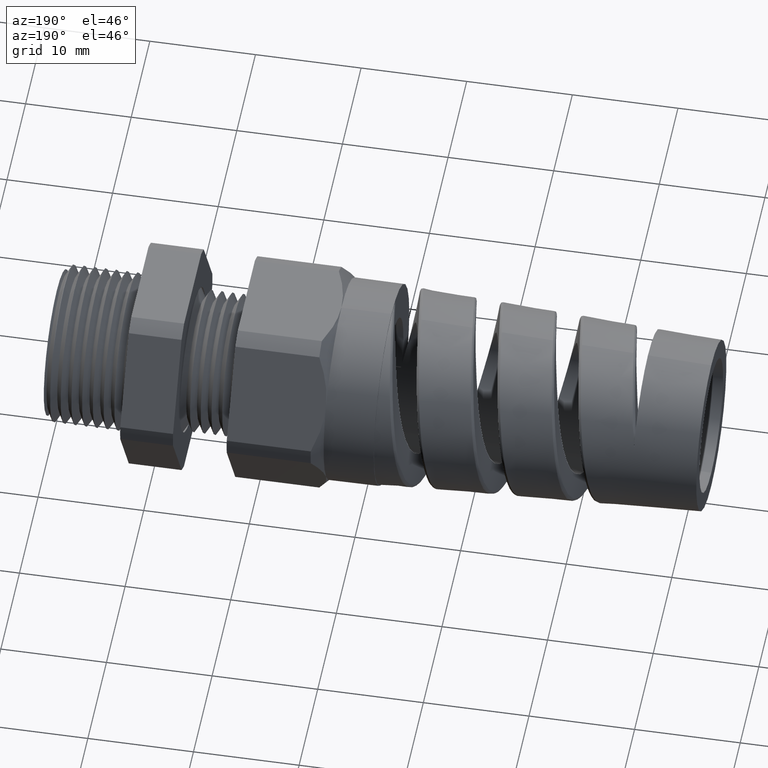
[diagram: clean part render]
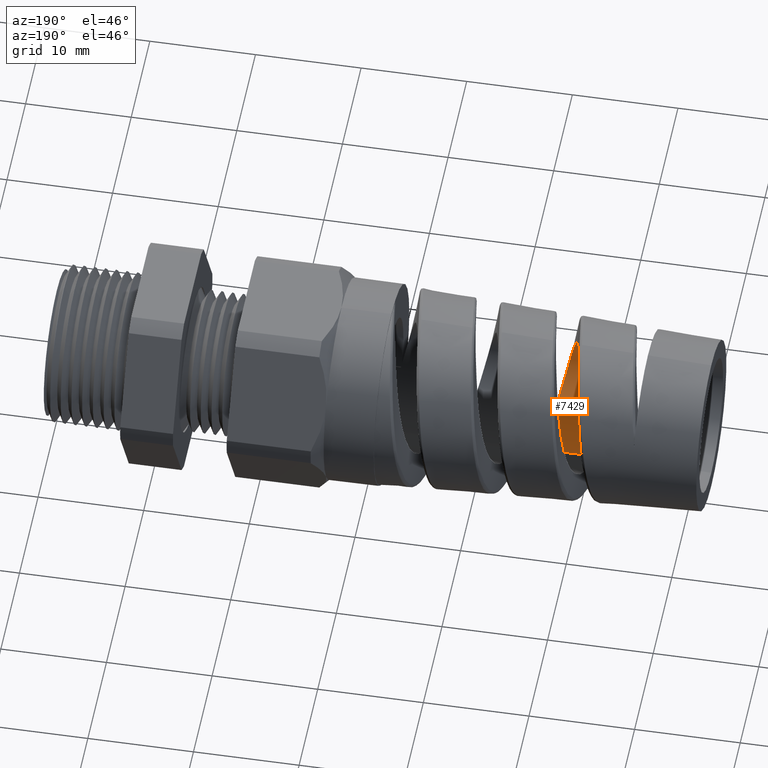
[diagram: same view with one face highlighted and labeled with its STEP entity id]
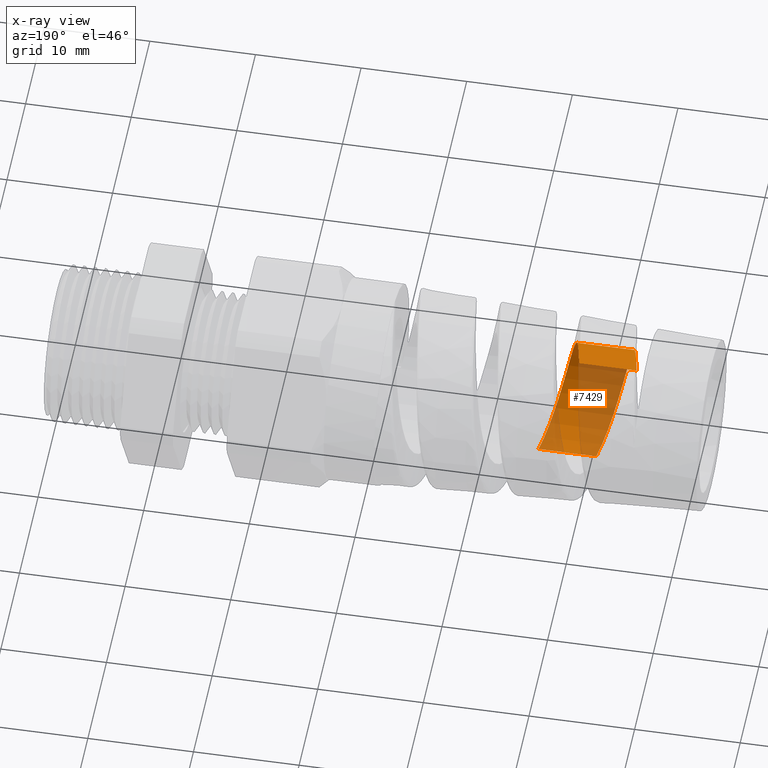
[diagram: x-ray of the same camera — body ghosted, the highlighted face saturated]
A machine part, auxiliary view. The second image highlights one B-rep face of the part: STEP entity #7429.
The next image is the same camera in x-ray: the body ghosted, the highlighted face saturated — about 56% of this face is hidden behind the body in this view.
In plain terms, the highlighted cylindrical surface (partial cylindrical patch) has radius 6.096 mm, axis along (1, 0, 0).
Its self-contained STEP definition (entity closure, byte-faithful):
#2983 = CARTESIAN_POINT ( 'NONE',  ( -1.796218581644420700, -5.091759151503627400E-013, -0.2399999999999999600 ) ) ;
#3215 = CARTESIAN_POINT ( 'NONE',  ( -1.946289323724517400, 7.574688839307685300E-014, 0.2399999999999999100 ) ) ;
#3377 = CARTESIAN_POINT ( 'NONE',  ( -2.011205361013721500, 3.223986141210390100E-013, -0.2400000000000000700 ) ) ;
#3434 = DIRECTION ( 'NONE',  ( 1.000000000000000000, 0.0000000000000000000, 0.0000000000000000000 ) ) ;
#3435 = VECTOR ( 'NONE', #3434, 39.37007874015748100 ) ;
#3436 = CARTESIAN_POINT ( 'NONE',  ( 0.09602717987635048200, 0.0000000000000000000, -0.2399999999999999600 ) ) ;
#3437 = LINE ( 'NONE', #3436, #3435 ) ;
#3438 = CARTESIAN_POINT ( 'NONE',  ( -1.796218581644420700, -5.091759151503627400E-013, -0.2399999999999999600 ) ) ;
#3463 = CARTESIAN_POINT ( 'NONE',  ( -1.799345076853985100, -0.01571479106632575300, -0.2399999999999668500 ) ) ;
#3464 = CARTESIAN_POINT ( 'NONE',  ( -1.802441852556633700, -0.03127694446794344900, -0.2384705174935239400 ) ) ;
#3465 = CARTESIAN_POINT ( 'NONE',  ( -1.808691589222652100, -0.06207396303905810700, -0.2323644940207207600 ) ) ;
#3466 = CARTESIAN_POINT ( 'NONE',  ( -1.811857481762063600, -0.07736311769747616900, -0.2277280513444978100 ) ) ;
#3467 = CARTESIAN_POINT ( 'NONE',  ( -1.818092459222667000, -0.1062929125134097600, -0.2157473849168336000 ) ) ;
#3468 = CARTESIAN_POINT ( 'NONE',  ( -1.821192243707277800, -0.1201034456313335200, -0.2083850614090281500 ) ) ;
#3469 = CARTESIAN_POINT ( 'NONE',  ( -1.825903156098205700, -0.1397976237568336600, -0.1952406649744962400 ) ) ;
#3470 = CARTESIAN_POINT ( 'NONE',  ( -1.827482766869769500, -0.1461830481258230300, -0.1905052886881926100 ) ) ;
#3471 = CARTESIAN_POINT ( 'NONE',  ( -1.830609670608373000, -0.1583315642719665700, -0.1805349393683129700 ) ) ;
#3472 = CARTESIAN_POINT ( 'NONE',  ( -1.832165622265226500, -0.1641316044955956300, -0.1752767065292338800 ) ) ;
#3473 = CARTESIAN_POINT ( 'NONE',  ( -1.836833034425648700, -0.1807186285898966500, -0.1586984784574887500 ) ) ;
#3474 = CARTESIAN_POINT ( 'NONE',  ( -1.839958943427009800, -0.1907460940445481800, -0.1465127469310545400 ) ) ;
#3475 = CARTESIAN_POINT ( 'NONE',  ( -1.846256688909388100, -0.2083206017564918900, -0.1202189015519105500 ) ) ;
#3476 = CARTESIAN_POINT ( 'NONE',  ( -1.849359788129029300, -0.2156922610018641400, -0.1064034323094277700 ) ) ;
#3477 = CARTESIAN_POINT ( 'NONE',  ( -1.854030583799945100, -0.2246846358825431700, -0.08472322505759495600 ) ) ;
#3478 = CARTESIAN_POINT ( 'NONE',  ( -1.855590234359778800, -0.2273355227818816000, -0.07733588511904468400 ) ) ;
#3479 = CARTESIAN_POINT ( 'NONE',  ( -1.858730363671128500, -0.2319248898760428400, -0.06223443180139816300 ) ) ;
#3480 = CARTESIAN_POINT ( 'NONE',  ( -1.860310243079125400, -0.2338570251685403200, -0.05452201581056152800 ) ) ;
#3481 = CARTESIAN_POINT ( 'NONE',  ( -1.865001380372663700, -0.2384557436013791700, -0.03139891810905406900 ) ) ;
#3482 = CARTESIAN_POINT ( 'NONE',  ( -1.868099486723601400, -0.2399907131798922600, -0.01583740965471708300 ) ) ;
#3483 = CARTESIAN_POINT ( 'NONE',  ( -1.874347620677560000, -0.2400092035551917900, 0.01555468308796917500 ) ) ;
#3484 = CARTESIAN_POINT ( 'NONE',  ( -1.877515720137594900, -0.2384442897084669800, 0.03145609773872871200 ) ) ;
#3485 = CARTESIAN_POINT ( 'NONE',  ( -1.883749534328019900, -0.2323360539032754700, 0.06217011690658180700 ) ) ;
#3486 = CARTESIAN_POINT ( 'NONE',  ( -1.886847928331726500, -0.2278087992488895300, 0.07715057530661720300 ) ) ;
#3487 = CARTESIAN_POINT ( 'NONE',  ( -1.891557619892518400, -0.2187605998226974100, 0.09902557768856677700 ) ) ;
#3488 = CARTESIAN_POINT ( 'NONE',  ( -1.893137828412657900, -0.2153609920142126900, 0.1062139886190101600 ) ) ;
#3489 = CARTESIAN_POINT ( 'NONE',  ( -1.896265849506708800, -0.2079506694334761800, 0.1200761730813992300 ) ) ;
#3490 = CARTESIAN_POINT ( 'NONE',  ( -1.897822355982464500, -0.2039244074275359800, 0.1267909465779982500 ) ) ;
#3491 = CARTESIAN_POINT ( 'NONE',  ( -1.902490575881320900, -0.1908998695600263900, 0.1462931034506788600 ) ) ;
#3492 = CARTESIAN_POINT ( 'NONE',  ( -1.905615699538617100, -0.1809100721717177600, 0.1584983529673436000 ) ) ;
#3493 = CARTESIAN_POINT ( 'NONE',  ( -1.911914764071887200, -0.1585440771256889100, 0.1808700022527241200 ) ) ;
#3494 = CARTESIAN_POINT ( 'NONE',  ( -1.915016562994604500, -0.1464303402485643300, 0.1907956213687848600 ) ) ;
#3495 = CARTESIAN_POINT ( 'NONE',  ( -1.919686098046592400, -0.1269216608220101500, 0.2038433109863684300 ) ) ;
#3496 = CARTESIAN_POINT ( 'NONE',  ( -1.921245395357905000, -0.1201942045805304600, 0.2078836312868669600 ) ) ;
#3497 = CARTESIAN_POINT ( 'NONE',  ( -1.924384990412221700, -0.1062812172698719400, 0.2153289433109139000 ) ) ;
#3498 = CARTESIAN_POINT ( 'NONE',  ( -1.925965573170781900, -0.09909213184452617100, 0.2187293477022765900 ) ) ;
#3499 = CARTESIAN_POINT ( 'NONE',  ( -1.930658534755901500, -0.07730675305905758400, 0.2277515718727131700 ) ) ;
#3500 = CARTESIAN_POINT ( 'NONE',  ( -1.933755938084959600, -0.06234309850888848000, 0.2322921115630209000 ) ) ;
#3501 = CARTESIAN_POINT ( 'NONE',  ( -1.940006017648212300, -0.03156253962025693000, 0.2384325756242540500 ) ) ;
#3502 = CARTESIAN_POINT ( 'NONE',  ( -1.943173091881696300, -0.01565935558690694600, 0.2400000000000049600 ) ) ;
#3503 = CARTESIAN_POINT ( 'NONE',  ( -1.946289323724517400, 7.574688839307685300E-014, 0.2399999999999999100 ) ) ;
#3506 = B_SPLINE_CURVE_WITH_KNOTS ( 'NONE', 3,
 ( #3503, #3502, #3501, #3500, #3499, #3498, #3497, #3496, #3495, #3494, #3493, #3492, #3491, #3490, #3489, #3488, #3487, #3486, #3485, #3484, #3483, #3482, #3481, #3480, #3479, #3478, #3477, #3476, #3475, #3474, #3473, #3472, #3471, #3470, #3469, #3468, #3467, #3466, #3465, #3464, #3463, #2983 ),
 .UNSPECIFIED., .F., .F.,
 ( 4, 2, 2, 2, 2, 2, 2, 2, 2, 2, 2, 2, 2, 2, 2, 2, 2, 2, 2, 2, 4 ),
 ( 0.03334762603918307900, 0.03456230039547690500, 0.03577697475177073900, 0.03638431192991765200, 0.03699164910806457300, 0.03820632346435840600, 0.03942099782065224000, 0.04002833499879916000, 0.04063567217694607400, 0.04185034653323990700, 0.04306502088953374800, 0.04427969524582757400, 0.04488703242397450200, 0.04549436960212141500, 0.04670904395841525600, 0.04792371831470908200, 0.04853105549285600300, 0.04913839267100292300, 0.05035306702729675600, 0.05156774138359059000, 0.05278241573988443100 ),
 .UNSPECIFIED. ) ;
#3508 = CARTESIAN_POINT ( 'NONE',  ( -2.092405020737196700, -0.2384634198785983200, 0.03136493497926864200 ) ) ;
#3509 = CARTESIAN_POINT ( 'NONE',  ( -2.089307972268295000, -0.2399913941444952700, 0.01579507239538019100 ) ) ;
#3510 = CARTESIAN_POINT ( 'NONE',  ( -2.083079738835440500, -0.2400085340142470700, -0.01553245556007741200 ) ) ;
#3511 = CARTESIAN_POINT ( 'NONE',  ( -2.079917968189332700, -0.2384481683514546900, -0.03144089873592425400 ) ) ;
#3512 = CARTESIAN_POINT ( 'NONE',  ( -2.073680664825668300, -0.2323271617848293700, -0.06221052162208574900 ) ) ;
#3513 = CARTESIAN_POINT ( 'NONE',  ( -2.070584899724715800, -0.2277961048291501600, -0.07717714240991888100 ) ) ;
#3514 = CARTESIAN_POINT ( 'NONE',  ( -2.065893483057911900, -0.2187807220746365000, -0.09897898675968586100 ) ) ;
#3515 = CARTESIAN_POINT ( 'NONE',  ( -2.064312222314190800, -0.2153816356182301800, -0.1061739355824688200 ) ) ;
#3516 = CARTESIAN_POINT ( 'NONE',  ( -2.061175497792306900, -0.2079494293103395000, -0.1200799250839142500 ) ) ;
#3517 = CARTESIAN_POINT ( 'NONE',  ( -2.059617180703407600, -0.2039150670987103200, -0.1268062230293405300 ) ) ;
#3518 = CARTESIAN_POINT ( 'NONE',  ( -2.054950992873836800, -0.1908818439725515600, -0.1463175068028154900 ) ) ;
#3519 = CARTESIAN_POINT ( 'NONE',  ( -2.051852481318522600, -0.1809613329510456900, -0.1584411401016637100 ) ) ;
#3520 = CARTESIAN_POINT ( 'NONE',  ( -2.045558993817604900, -0.1585826432390649600, -0.1808373417285425400 ) ) ;
#3521 = CARTESIAN_POINT ( 'NONE',  ( -2.042443875501774600, -0.1464053916530538000, -0.1908137867579851000 ) ) ;
#3522 = CARTESIAN_POINT ( 'NONE',  ( -2.037779526631799500, -0.1269105838298508800, -0.2038499783970256500 ) ) ;
#3523 = CARTESIAN_POINT ( 'NONE',  ( -2.036224152659118900, -0.1201963816372684200, -0.2078813645784359000 ) ) ;
#3524 = CARTESIAN_POINT ( 'NONE',  ( -2.033095989729675000, -0.1063312195842547500, -0.2153032829276168600 ) ) ;
#3525 = CARTESIAN_POINT ( 'NONE',  ( -2.031514809170631400, -0.09913994478192650300, -0.2187085698388031300 ) ) ;
#3526 = CARTESIAN_POINT ( 'NONE',  ( -2.026809555608081400, -0.07728711363995677300, -0.2277616533887929000 ) ) ;
#3527 = CARTESIAN_POINT ( 'NONE',  ( -2.023713798198563100, -0.06231339122590537300, -0.2322979750653394200 ) ) ;
#3528 = CARTESIAN_POINT ( 'NONE',  ( -2.017487176005304600, -0.03159409934242581000, -0.2384263425720210800 ) ) ;
#3529 = CARTESIAN_POINT ( 'NONE',  ( -2.014325152923267700, -0.01568823267450041400, -0.2400000000000210300 ) ) ;
#3530 = CARTESIAN_POINT ( 'NONE',  ( -2.011205361013721500, 3.223986141210390100E-013, -0.2400000000000000700 ) ) ;
#3531 = B_SPLINE_CURVE_WITH_KNOTS ( 'NONE', 3,
 ( #3530, #3529, #3528, #3527, #3526, #3525, #3524, #3523, #3522, #3521, #3520, #3519, #3518, #3517, #3516, #3515, #3514, #3513, #3512, #3511, #3510, #3509, #3508, #3575, #3574, #3573, #3572, #3571, #3570, #3569, #3568, #3567, #3566, #3565, #3564, #3563, #3562, #3561, #3560, #3559, #3558, #3557 ),
 .UNSPECIFIED., .F., .F.,
 ( 4, 2, 2, 2, 2, 2, 2, 2, 2, 2, 2, 2, 2, 2, 2, 2, 2, 2, 2, 2, 4 ),
 ( 0.1101253635527964700, 0.1113399433159385200, 0.1125545230790805800, 0.1131618129606516100, 0.1137691028422226400, 0.1149836826053646900, 0.1161982623685067500, 0.1168055522500777800, 0.1174128421316488100, 0.1186274218947908600, 0.1198420016579329200, 0.1210565814210749800, 0.1216638713026460000, 0.1222711611842170300, 0.1234857409473590900, 0.1247003207105011500, 0.1253076105920721800, 0.1259149004736432000, 0.1271294802367852700, 0.1283440599999273200, 0.1295586397630693900 ),
 .UNSPECIFIED. ) ;
#3533 = DIRECTION ( 'NONE',  ( 1.000000000000000000, 0.0000000000000000000, 0.0000000000000000000 ) ) ;
#3534 = VECTOR ( 'NONE', #3533, 39.37007874015748100 ) ;
#3535 = CARTESIAN_POINT ( 'NONE',  ( 0.09602717987635048200, 2.939152317953647400E-017, 0.2399999999999999600 ) ) ;
#3536 = LINE ( 'NONE', #3535, #3534 ) ;
#3556 = CARTESIAN_POINT ( 'NONE',  ( -2.161135961324270200, -4.710561921808479100E-013, 0.2399999999999998500 ) ) ;
#3557 = CARTESIAN_POINT ( 'NONE',  ( -2.161135961324270200, -4.710561921808479100E-013, 0.2399999999999998500 ) ) ;
#3558 = CARTESIAN_POINT ( 'NONE',  ( -2.158001486423615200, -0.01576279409592207900, 0.2399999999999689600 ) ) ;
#3559 = CARTESIAN_POINT ( 'NONE',  ( -2.154903208859133600, -0.03133052368417372400, 0.2384613100253416300 ) ) ;
#3560 = CARTESIAN_POINT ( 'NONE',  ( -2.148672632514681400, -0.06206214415322389800, 0.2323654198809089700 ) ) ;
#3561 = CARTESIAN_POINT ( 'NONE',  ( -2.145510358032814800, -0.07736121358353763300, 0.2277306313950204200 ) ) ;
#3562 = CARTESIAN_POINT ( 'NONE',  ( -2.139274909064222900, -0.1063416538434773100, 0.2157254053201116100 ) ) ;
#3563 = CARTESIAN_POINT ( 'NONE',  ( -2.136180395150624600, -0.1201373476062714000, 0.2083614154738382400 ) ) ;
#3564 = CARTESIAN_POINT ( 'NONE',  ( -2.131487304294331400, -0.1397645477076542600, 0.1952632495916927800 ) ) ;
#3565 = CARTESIAN_POINT ( 'NONE',  ( -2.129906650369475700, -0.1461589917554334800, 0.1905247415083663700 ) ) ;
#3566 = CARTESIAN_POINT ( 'NONE',  ( -2.126770994941950700, -0.1583450592840878200, 0.1805241540573266600 ) ) ;
#3567 = CARTESIAN_POINT ( 'NONE',  ( -2.125212562604518900, -0.1641541760862420300, 0.1752557314880084100 ) ) ;
#3568 = CARTESIAN_POINT ( 'NONE',  ( -2.120545389926474600, -0.1807466199531346200, 0.1586673222794042200 ) ) ;
#3569 = CARTESIAN_POINT ( 'NONE',  ( -2.117445550260098000, -0.1907028661944164000, 0.1465713013695573700 ) ) ;
#3570 = CARTESIAN_POINT ( 'NONE',  ( -2.111150497570886100, -0.2083066236664040900, 0.1202459150933378200 ) ) ;
#3571 = CARTESIAN_POINT ( 'NONE',  ( -2.108038356565276900, -0.2157107521114758600, 0.1063641139442889900 ) ) ;
#3572 = CARTESIAN_POINT ( 'NONE',  ( -2.103374552406610800, -0.2246931923722024500, 0.08469995649055231400 ) ) ;
#3573 = CARTESIAN_POINT ( 'NONE',  ( -2.101818584372274800, -0.2273374026223326200, 0.07732761382458698500 ) ) ;
#3574 = CARTESIAN_POINT ( 'NONE',  ( -2.098690240434134300, -0.2319122592600957300, 0.06227807395665943500 ) ) ;
#3575 = CARTESIAN_POINT ( 'NONE',  ( -2.097109570304089400, -0.2338491756900563900, 0.05455917402869804600 ) ) ;
#3739 = CYLINDRICAL_SURFACE ( 'NONE', #3812, 0.2399999999999999600 ) ;
#3740 = CARTESIAN_POINT ( 'NONE',  ( 0.09602717987635048200, 0.0000000000000000000, 0.0000000000000000000 ) ) ;
#3741 = FACE_OUTER_BOUND ( 'NONE', #7377, .T. ) ;
#3810 = DIRECTION ( 'NONE',  ( 0.0000000000000000000, 0.0000000000000000000, -1.000000000000000000 ) ) ;
#3811 = DIRECTION ( 'NONE',  ( 1.000000000000000000, 0.0000000000000000000, 0.0000000000000000000 ) ) ;
#3812 = AXIS2_PLACEMENT_3D ( 'NONE', #3740, #3811, #3810 ) ;
#7320 = VERTEX_POINT ( 'NONE', #3215 ) ;
#7346 = VERTEX_POINT ( 'NONE', #3377 ) ;
#7368 = ORIENTED_EDGE ( 'NONE', *, *, #7388, .T. ) ;
#7374 = VERTEX_POINT ( 'NONE', #3438 ) ;
#7375 = EDGE_CURVE ( 'NONE', #7346, #7374, #3437, .T. ) ;
#7376 = ORIENTED_EDGE ( 'NONE', *, *, #7375, .F. ) ;
#7377 = EDGE_LOOP ( 'NONE', ( #7368, #7389, #7381, #7376 ) ) ;
#7380 = EDGE_CURVE ( 'NONE', #7320, #7374, #3506, .T. ) ;
#7381 = ORIENTED_EDGE ( 'NONE', *, *, #7380, .T. ) ;
#7386 = EDGE_CURVE ( 'NONE', #7392, #7320, #3536, .T. ) ;
#7388 = EDGE_CURVE ( 'NONE', #7346, #7392, #3531, .T. ) ;
#7389 = ORIENTED_EDGE ( 'NONE', *, *, #7386, .T. ) ;
#7392 = VERTEX_POINT ( 'NONE', #3556 ) ;
#7429 = ADVANCED_FACE ( 'NONE', ( #3741 ), #3739, .F. ) ;